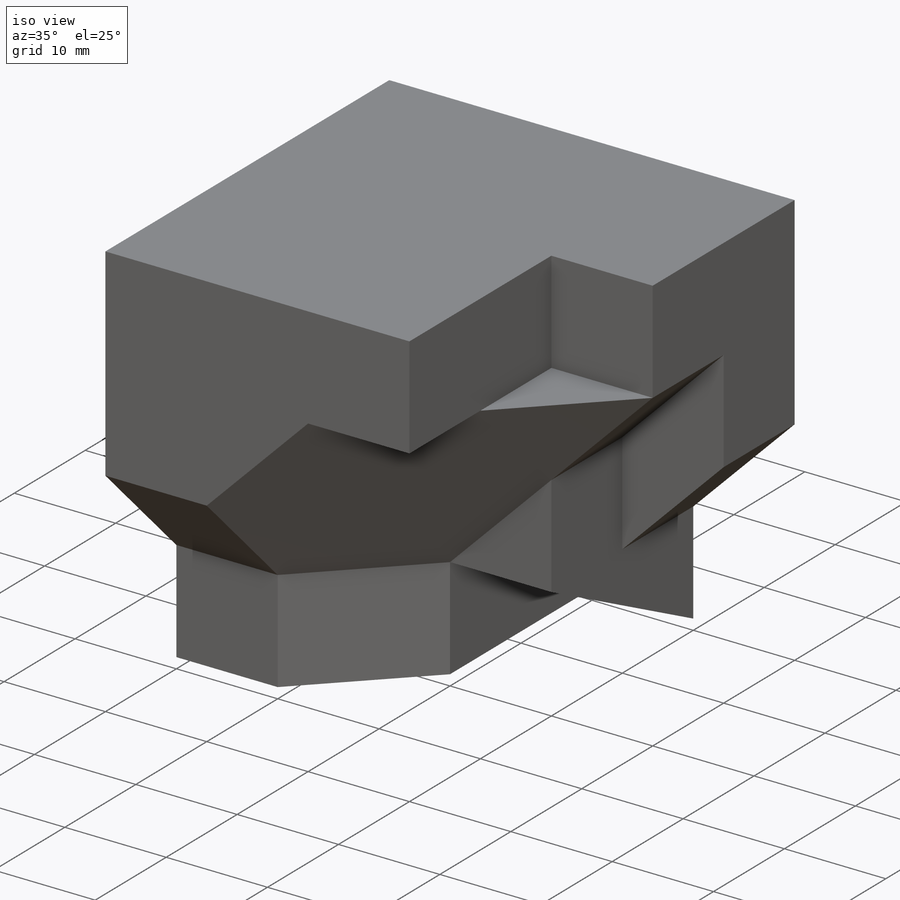
[diagram: iso view]
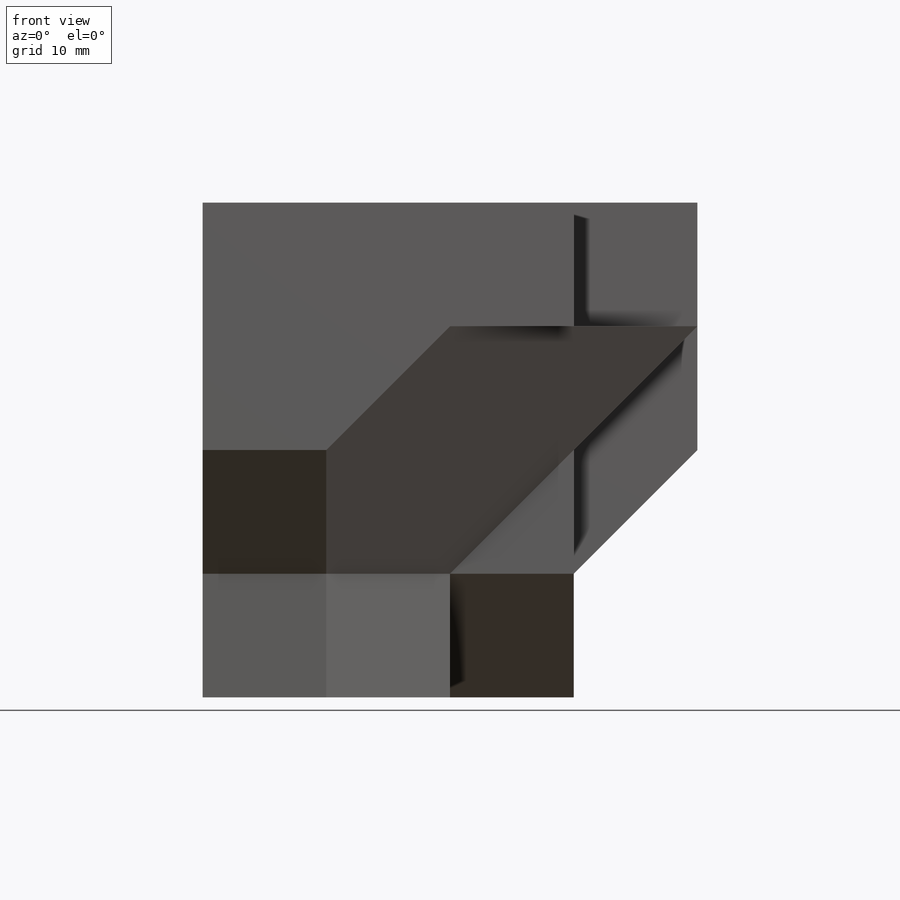
[diagram: front view]
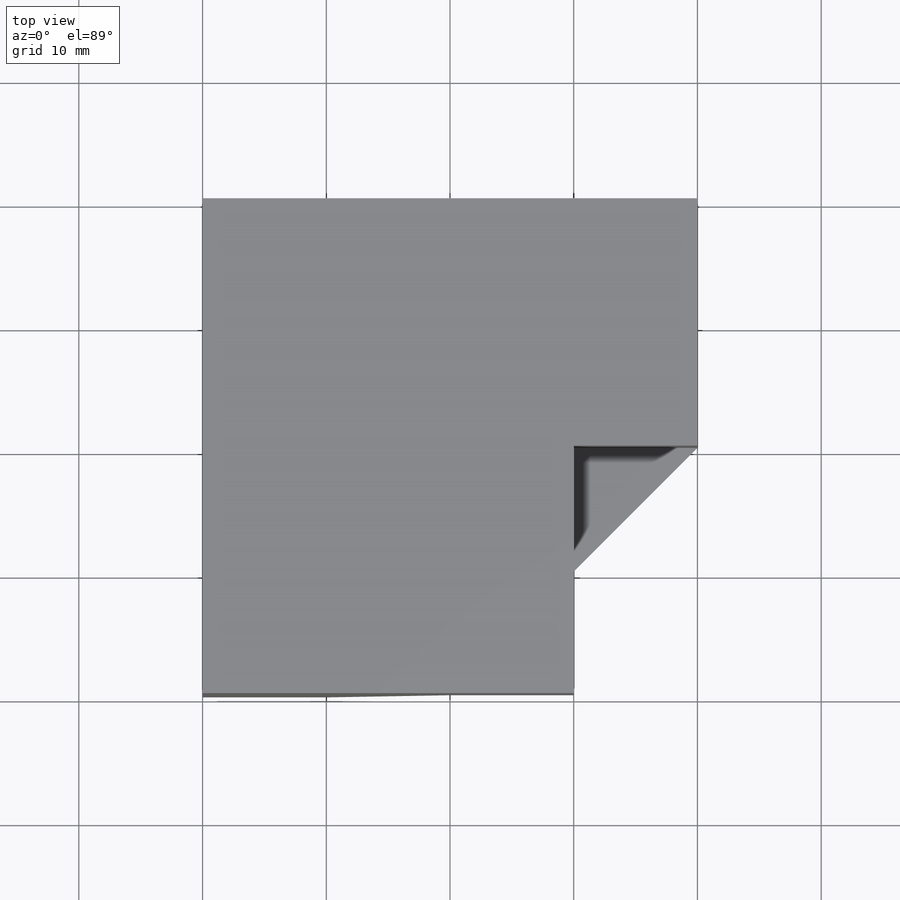
[diagram: top view]
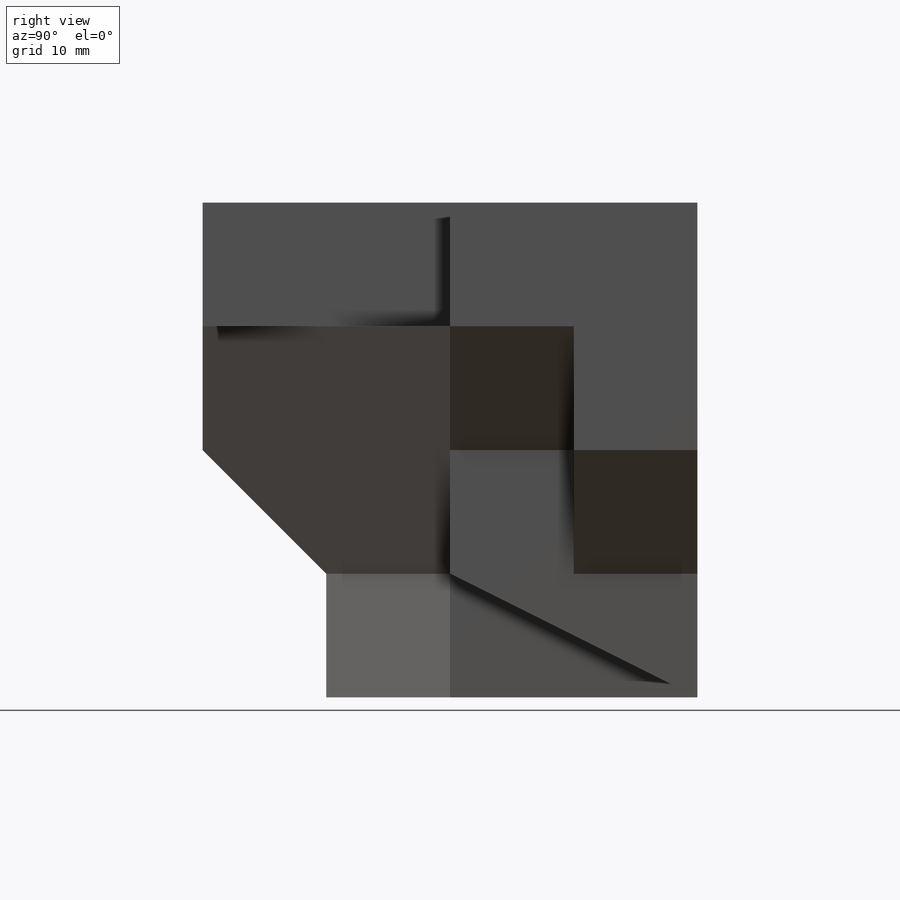
[diagram: right view]
SOLIDWORKS PART (.sldprt)
format: sldprt  version: not decoded by parser v0  size: 374,784 bytes
history: native  units: mm
features: sketch x22, extrude x12, cut_extrude x7, material x1, plane x1 (+13 scaffold rows collapsed)
feature tree (56):
  scaffold x13  (default folders/planes/origin — collapsed)
  material  "Material <not specified>"
  sketch  "Sketch1"  dims[c1.D1=~46.987648mm c1.D2=~72.598942mm c2.D1=40.0mm c2.D2=40.0mm]
  extrude  "Boss-Extrude1"  Depth=20mm
  sketch  "Sketch2"  dims[D1=10.0mm D2=20.0mm D3=20.0mm D4=20.0mm]
  cut_extrude  "Cut-Extrude1"  Depth=20mm
  sketch  "Sketch3"  dims[D1=10.0mm D2=10.0mm]
  extrude  "Boss-Extrude2"  Depth=10mm
  sketch  "Sketch4"  dims[D1=10.0mm]
  extrude  "Boss-Extrude3"  Depth=10mm
  sketch  "Sketch5"  dims[c1.D1=~12.477635mm c1.D2=~10.697425mm c2.D1=10.0mm]
  extrude  "Boss-Extrude4"  Depth=20mm
  sketch  "Sketch6"  dims[D1=10.0mm D2=10.0mm D3=10.0mm D4=~14.142136mm]
  extrude  "Boss-Extrude5"  Depth=10mm
  sketch  "Sketch7"  dims[c1.D1=~10.238328mm c1.D2=~24.613438mm c2.D1=30.0mm c2.D2=10.0mm]
  extrude  "Boss-Extrude6"  Depth=20mm
  sketch  "Sketch8"  dims[D1=10.0mm D2=10.0mm]
  extrude  "Boss-Extrude7"  Depth=10mm
  sketch  "Sketch9"  dims[D1=10.0mm D2=10.0mm]
  extrude  "Boss-Extrude8"  Depth=20mm
  sketch  "Sketch10"  dims[D1=~28.284271mm]
  sketch  "Sketch11"  dims[D1=~28.284271mm]
  plane  "Plane1"
  sketch  "Sketch12"  dims[D1=~24.494897mm]
  sketch  "Sketch13"  dims[c1.D1=~9.990245mm c1.D2=~10.245011mm c2.D1=10.0mm c2.D2=10.0mm]
  extrude  "Boss-Extrude10"  Depth=10mm
  extrude  "Boss-Extrude13"  Depth=10mm
  sketch  "Sketch14"  dims[D1=~24.494897mm]
  sketch  "Sketch15"  dims[c1.D1=~30.380258mm c1.D2=23.9317mm c2.D1=20.0mm]
  extrude  "Boss-Extrude15"  Depth=30mm
  sketch  "Sketch17"  dims[D1=~28.284271mm]
  cut_extrude  "Cut-Extrude2"  Depth=30mm
  sketch  "Sketch18"  dims[D1=~24.494897mm]
  cut_extrude  "Cut-Extrude3"  Depth=30mm
  sketch  "Sketch20"  dims[D1=~14.142136mm]
  cut_extrude  "Cut-Extrude4"  Depth=30mm
  sketch  "Sketch21"  dims[D1=10.0mm D2=10.0mm]
  cut_extrude  "Cut-Extrude5"  Depth=30mm
  sketch  "Sketch23"  dims[D1=~28.284271mm]
  extrude  "Boss-Extrude16"  Depth=10mm
  sketch  "Sketch24"  dims[D1=10.0mm]
  cut_extrude  "Cut-Extrude6"  Depth=10mm
  sketch  "Sketch25"  dims[c1.D1=~21.443962mm c1.D2=10.0mm c2.D1=20.0mm]
  cut_extrude  "Cut-Extrude7"  Depth=10mm
decode coverage: 41 of 41 modeling features carry decoded parameters
note: ~ marks probable driven/reference dimensions
note: suppression state not decoded; provenance and decode notes live in map.json
